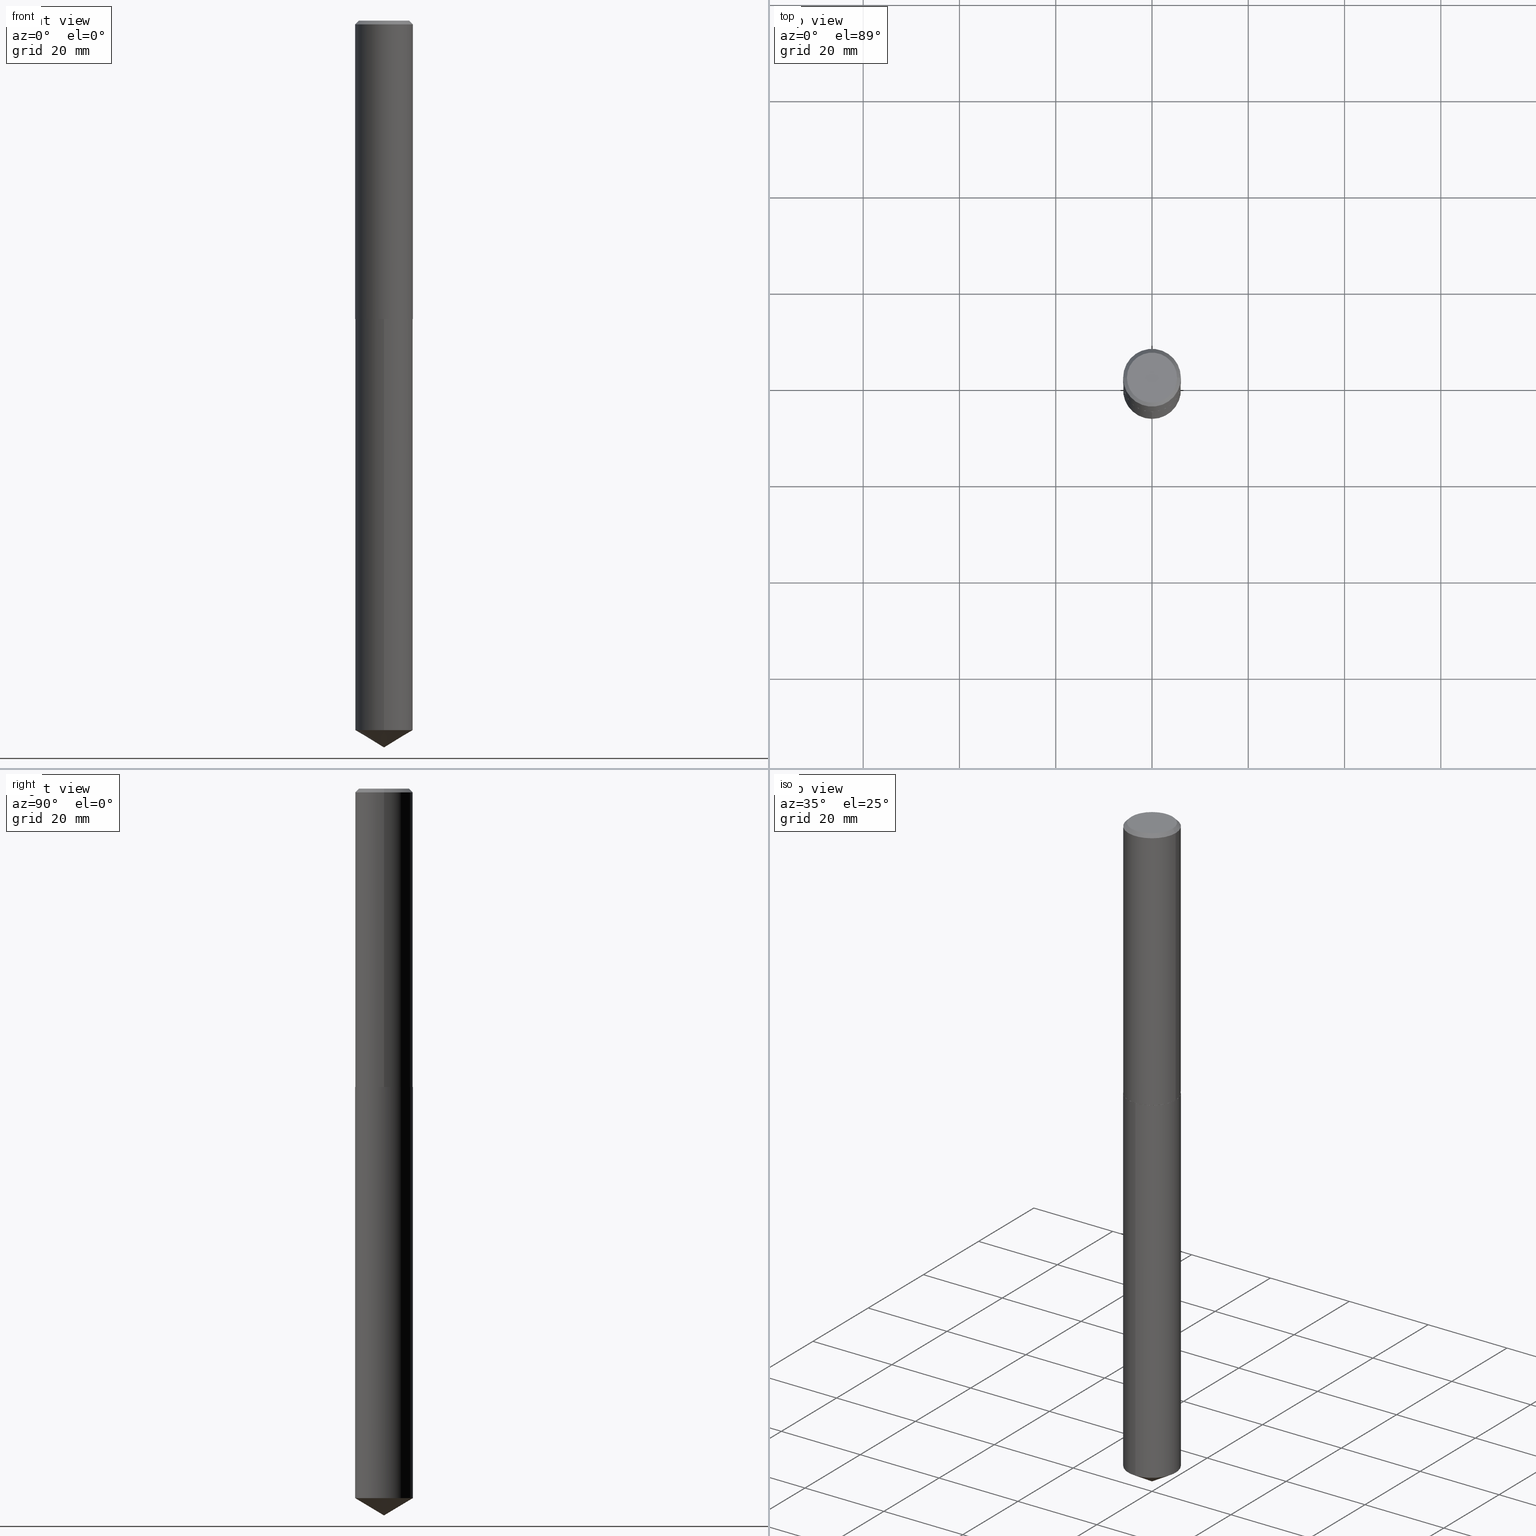
[diagram: canonical four-view strip — front | top / right | iso, engineering-drawing reading convention]
A machine part, canonical four-view strip (front | top / right | iso — engineering-drawing reading convention). The complete STEP part file that produces these views, byte-faithful:
ISO-10303-21;
HEADER;
FILE_DESCRIPTION (( 'STEP AP203' ),
    '1' );
FILE_NAME ('68293.STEP',
    '2024-04-23T12:59:30',
    ( '' ),
    ( '' ),
    'SwSTEP 2.0',
    'SolidWorks 2023',
    '' );
FILE_SCHEMA (( 'CONFIG_CONTROL_DESIGN' ));
ENDSEC;

DATA;
#1 = VERTEX_POINT ( 'NONE', #124 ) ;
#2 = APPROVAL_PERSON_ORGANIZATION ( #342, #362, #324 ) ;
#3 = APPROVAL_STATUS ( 'not_yet_approved' ) ;
#4 = APPROVAL_ROLE ( '' ) ;
#5 = CARTESIAN_POINT ( 'NONE',  ( 1.419029179448476620E-28, -2.026199705678029935E-14, -5.802976721785690017 ) ) ;
#6 = ORIENTED_EDGE ( 'NONE', *, *, #323, .T. ) ;
#7 = LINE ( 'NONE', #42, #57 ) ;
#8 = AXIS2_PLACEMENT_3D ( 'NONE', #122, #71, #272 ) ;
#9 = LOCAL_TIME ( 8, 59, 30.00000000000000000, #165 ) ;
#10 = DIRECTION ( 'NONE',  ( 2.438088387897960049E-29, -3.491481338843145188E-15, -1.000000000000000000 ) ) ;
#11 = FACE_OUTER_BOUND ( 'NONE', #256, .T. ) ;
#12 = CARTESIAN_POINT ( 'NONE',  ( -0.2357000000000007145, -6.844958344621560747E-15, -2.440899999999999181 ) ) ;
#13 = VECTOR ( 'NONE', #186, 39.37007874015748143 ) ;
#14 = EDGE_CURVE ( 'NONE', #335, #155, #183, .T. ) ;
#15 = CONICAL_SURFACE ( 'NONE', #101, 0.2361999999999999933, 0.7853981633974450594 ) ;
#16 = ORIENTED_EDGE ( 'NONE', *, *, #203, .T. ) ;
#17 = VERTEX_POINT ( 'NONE', #326 ) ;
#18 = CC_DESIGN_PERSON_AND_ORGANIZATION_ASSIGNMENT ( #63, #312, ( #69 ) ) ;
#19 = CYLINDRICAL_SURFACE ( 'NONE', #294, 0.2361999999999999933 ) ;
#20 = APPLICATION_CONTEXT ( 'configuration controlled 3d designs of mechanical parts and assemblies' ) ;
#21 = EDGE_CURVE ( 'NONE', #264, #336, #67, .T. ) ;
#22 = ORIENTED_EDGE ( 'NONE', *, *, #201, .F. ) ;
#23 = APPROVAL_DATE_TIME ( #307, #32 ) ;
#24 = SECURITY_CLASSIFICATION_LEVEL ( 'unclassified' ) ;
#25 = DIRECTION ( 'NONE',  ( -1.000000000000000000, 6.982962677686266711E-15, 0.000000000000000000 ) ) ;
#26 = AXIS2_PLACEMENT_3D ( 'NONE', #243, #356, #213 ) ;
#27 = AXIS2_PLACEMENT_3D ( 'NONE', #247, #98, #225 ) ;
#28 = AXIS2_PLACEMENT_3D ( 'NONE', #156, #129, #29 ) ;
#29 = DIRECTION ( 'NONE',  ( -6.982962677686265922E-15, -1.000000000000000000, 3.469747663417777397E-15 ) ) ;
#30 = ORIENTED_EDGE ( 'NONE', *, *, #157, .F. ) ;
#31 = CARTESIAN_POINT ( 'NONE',  ( 0.2362000000000001321, -1.649375784469497117E-15, 1.151752954443000789E-29 ) ) ;
#32 = APPROVAL ( #189, 'UNSPECIFIED' ) ;
#33 = ADVANCED_FACE ( 'NONE', ( #215 ), #34, .T. ) ;
#34 = CYLINDRICAL_SURFACE ( 'NONE', #44, 0.2362000000000001321 ) ;
#35 = APPROVAL ( #3, 'UNSPECIFIED' ) ;
#36 = EDGE_CURVE ( 'NONE', #155, #335, #105, .T. ) ;
#37 = ORIENTED_EDGE ( 'NONE', *, *, #96, .T. ) ;
#38 = PERSON_AND_ORGANIZATION ( #359, #199 ) ;
#39 = CIRCLE ( 'NONE', #277, 0.2361999999999999933 ) ;
#40 = CC_DESIGN_PERSON_AND_ORGANIZATION_ASSIGNMENT ( #303, #377, ( #173 ) ) ;
#41 = FACE_OUTER_BOUND ( 'NONE', #140, .T. ) ;
#42 = CARTESIAN_POINT ( 'NONE',  ( 0.2362000000000002709, -1.016998684378230720E-14, -2.440399999999999014 ) ) ;
#43 = PERSON_AND_ORGANIZATION ( #359, #199 ) ;
#44 = AXIS2_PLACEMENT_3D ( 'NONE', #152, #273, #390 ) ;
#45 = CIRCLE ( 'NONE', #75, 0.2361999999999999933 ) ;
#46 = CARTESIAN_POINT ( 'NONE',  ( -0.2049499999999999933, 1.485712596711223663E-15, 1.200153863154214623E-18 ) ) ;
#47 = FACE_OUTER_BOUND ( 'NONE', #54, .T. ) ;
#48 = ORIENTED_EDGE ( 'NONE', *, *, #276, .F. ) ;
#49 = AXIS2_PLACEMENT_3D ( 'NONE', #388, #302, #25 ) ;
#50 = ORIENTED_EDGE ( 'NONE', *, *, #327, .F. ) ;
#51 = FACE_OUTER_BOUND ( 'NONE', #224, .T. ) ;
#52 = DESIGN_CONTEXT ( 'detailed design', #20, 'design' ) ;
#53 = ADVANCED_FACE ( 'NONE', ( #92 ), #146, .F. ) ;
#54 = EDGE_LOOP ( 'NONE', ( #22, #375, #182, #16 ) ) ;
#55 = CARTESIAN_POINT ( 'NONE',  ( 5.969144809017297917E-29, -8.522356799982231388E-15, -2.440899999999999181 ) ) ;
#56 = AXIS2_PLACEMENT_3D ( 'NONE', #378, #84, #211 ) ;
#57 = VECTOR ( 'NONE', #279, 39.37007874015748143 ) ;
#58 = DIRECTION ( 'NONE',  ( -2.445258590381302040E-29, 3.491782379838977394E-15, 1.000000000000000000 ) ) ;
#59 =( LENGTH_UNIT ( ) NAMED_UNIT ( * ) SI_UNIT ( $, .METRE. ) );
#60 =( NAMED_UNIT ( * ) SI_UNIT ( $, .STERADIAN. ) SOLID_ANGLE_UNIT ( ) );
#61 = DIRECTION ( 'NONE',  ( 1.000000000000000000, -6.982962677686266711E-15, 4.876234172754136290E-29 ) ) ;
#62 = DIRECTION ( 'NONE',  ( 1.000000000000000000, -6.982962677686269077E-15, 0.000000000000000000 ) ) ;
#63 = PERSON_AND_ORGANIZATION ( #359, #199 ) ;
#64 = LINE ( 'NONE', #345, #85 ) ;
#65 = DIRECTION ( 'NONE',  ( -2.445468806185136597E-29, 3.491481338843145583E-15, 1.000000000000000000 ) ) ;
#66 = AXIS2_PLACEMENT_3D ( 'NONE', #320, #119, #61 ) ;
#67 = LINE ( 'NONE', #246, #13 ) ;
#68 = DIRECTION ( 'NONE',  ( -6.982962677686265922E-15, -1.000000000000000000, 3.469747663417777397E-15 ) ) ;
#69 = PRODUCT_DEFINITION ( 'UNKNOWN', '', #173, #52 ) ;
#70 = EDGE_CURVE ( 'NONE', #357, #371, #221, .T. ) ;
#71 = DIRECTION ( 'NONE',  ( -2.445468806185136597E-29, 3.491481338843145583E-15, 1.000000000000000000 ) ) ;
#72 = PERSON_AND_ORGANIZATION_ROLE ( 'design_owner' ) ;
#73 = DATE_TIME_ROLE ( 'creation_date' ) ;
#74 = AXIS2_PLACEMENT_3D ( 'NONE', #280, #370, #110 ) ;
#75 = AXIS2_PLACEMENT_3D ( 'NONE', #131, #97, #254 ) ;
#76 = DIRECTION ( 'NONE',  ( -2.445258590381302040E-29, 3.491782379838977394E-15, 1.000000000000000000 ) ) ;
#77 = CIRCLE ( 'NONE', #74, 0.2357000000000007145 ) ;
#78 = DIRECTION ( 'NONE',  ( -1.000000000000000000, 6.982962677686265922E-15, -4.876176775795935793E-29 ) ) ;
#79 = ORIENTED_EDGE ( 'NONE', *, *, #355, .F. ) ;
#80 = FACE_OUTER_BOUND ( 'NONE', #232, .T. ) ;
#81 = DIRECTION ( 'NONE',  ( -5.985567269335951535E-15, -0.8571673007021116675, 0.5150380749100552658 ) ) ;
#82 = ORIENTED_EDGE ( 'NONE', *, *, #314, .T. ) ;
#83 = DIRECTION ( 'NONE',  ( -2.445468806185136597E-29, 3.491481338843145583E-15, 1.000000000000000000 ) ) ;
#84 = DIRECTION ( 'NONE',  ( -2.438088387897960049E-29, 3.491481338843145188E-15, 1.000000000000000000 ) ) ;
#85 = VECTOR ( 'NONE', #58, 39.37007874015748143 ) ;
#86 = CC_DESIGN_SECURITY_CLASSIFICATION ( #184, ( #173 ) ) ;
#87 = EDGE_CURVE ( 'NONE', #137, #1, #112, .T. ) ;
#88 = DATE_AND_TIME ( #239, #338 ) ;
#89 = SHAPE_DEFINITION_REPRESENTATION ( #310, #376 ) ;
#90 = DIRECTION ( 'NONE',  ( -6.982962677686265922E-15, -1.000000000000000000, 4.626330217890369336E-15 ) ) ;
#91 = ORIENTED_EDGE ( 'NONE', *, *, #231, .F. ) ;
#92 = FACE_OUTER_BOUND ( 'NONE', #198, .T. ) ;
#93 = CIRCLE ( 'NONE', #278, 0.2361999999999999933 ) ;
#94 = ORIENTED_EDGE ( 'NONE', *, *, #203, .F. ) ;
#95 = ORIENTED_EDGE ( 'NONE', *, *, #36, .T. ) ;
#96 = EDGE_CURVE ( 'NONE', #155, #364, #296, .T. ) ;
#97 = DIRECTION ( 'NONE',  ( -2.445468806185136597E-29, 3.491481338843145583E-15, 1.000000000000000000 ) ) ;
#98 = DIRECTION ( 'NONE',  ( -2.445258590381302040E-29, 3.491782379838977394E-15, 1.000000000000000000 ) ) ;
#99 = CARTESIAN_POINT ( 'NONE',  ( 1.678301941865498784E-15, 0.2361999999999914723, -2.440900000000000070 ) ) ;
#100 = AXIS2_PLACEMENT_3D ( 'NONE', #193, #286, #309 ) ;
#101 = AXIS2_PLACEMENT_3D ( 'NONE', #334, #128, #281 ) ;
#102 = LINE ( 'NONE', #163, #138 ) ;
#103 = PRODUCT ( '68293', '68293', '', ( #144 ) ) ;
#104 = CARTESIAN_POINT ( 'NONE',  ( 0.2361999999999999933, -1.758484576308345231E-15, -0.03125000000000021511 ) ) ;
#105 = CIRCLE ( 'NONE', #8, 0.2362000000000002709 ) ;
#106 = AXIS2_PLACEMENT_3D ( 'NONE', #5, #361, #313 ) ;
#107 = ADVANCED_FACE ( 'NONE', ( #141 ), #346, .T. ) ;
#108 = EDGE_CURVE ( 'NONE', #336, #292, #373, .T. ) ;
#109 = DIRECTION ( 'NONE',  ( 1.000000000000000000, -6.982962677686269077E-15, 0.000000000000000000 ) ) ;
#110 = DIRECTION ( 'NONE',  ( 1.000000000000000000, -6.982962677686269866E-15, 0.000000000000000000 ) ) ;
#111 = ORIENTED_EDGE ( 'NONE', *, *, #185, .T. ) ;
#112 = LINE ( 'NONE', #343, #233 ) ;
#113 = ORIENTED_EDGE ( 'NONE', *, *, #70, .F. ) ;
#114 = COORDINATED_UNIVERSAL_TIME_OFFSET ( 5, 0, .BEHIND. ) ;
#115 = COORDINATED_UNIVERSAL_TIME_OFFSET ( 5, 0, .BEHIND. ) ;
#116 = AXIS2_PLACEMENT_3D ( 'NONE', #291, #200, #197 ) ;
#117 =( GEOMETRIC_REPRESENTATION_CONTEXT ( 3 ) GLOBAL_UNCERTAINTY_ASSIGNED_CONTEXT ( ( #257 ) ) GLOBAL_UNIT_ASSIGNED_CONTEXT ( ( #181, #301, #60 ) ) REPRESENTATION_CONTEXT ( 'NONE', 'WORKASPACE' ) );
#118 = PERSON_AND_ORGANIZATION ( #359, #199 ) ;
#119 = DIRECTION ( 'NONE',  ( -2.445468806185136597E-29, 3.491481338843145583E-15, 1.000000000000000000 ) ) ;
#120 = ORIENTED_EDGE ( 'NONE', *, *, #87, .F. ) ;
#121 = CARTESIAN_POINT ( 'NONE',  ( 5.969144809017297917E-29, -8.522356799982231388E-15, -2.440899999999999181 ) ) ;
#122 = CARTESIAN_POINT ( 'NONE',  ( 5.967922074614205116E-29, -8.520611059312809095E-15, -2.440399999999999014 ) ) ;
#123 = FACE_OUTER_BOUND ( 'NONE', #275, .T. ) ;
#124 = CARTESIAN_POINT ( 'NONE',  ( -0.2361999999999999933, -2.636557983710470337E-15, -0.03125000000000021511 ) ) ;
#125 = CYLINDRICAL_SURFACE ( 'NONE', #28, 0.2361999999999999933 ) ;
#126 = CLOSED_SHELL ( 'NONE', ( #107, #236, #180, #53, #265, #33, #317, #305 ) ) ;
#127 = EDGE_CURVE ( 'NONE', #17, #264, #148, .T. ) ;
#128 = DIRECTION ( 'NONE',  ( 2.445468806185136597E-29, -3.491481338843145583E-15, -1.000000000000000000 ) ) ;
#129 = DIRECTION ( 'NONE',  ( -2.445258590381302040E-29, 3.491782379838977394E-15, 1.000000000000000000 ) ) ;
#130 = LINE ( 'NONE', #339, #172 ) ;
#131 = CARTESIAN_POINT ( 'NONE',  ( 7.642090019328603538E-31, -1.091087918388490390E-16, -0.03125000000000021511 ) ) ;
#132 = CONICAL_SURFACE ( 'NONE', #315, 65.52281426576875845, 1.029744258676656754 ) ;
#133 = ORIENTED_EDGE ( 'NONE', *, *, #169, .T. ) ;
#134 = EDGE_CURVE ( 'NONE', #137, #174, #238, .T. ) ;
#135 = ORIENTED_EDGE ( 'NONE', *, *, #157, .T. ) ;
#136 = ADVANCED_FACE ( 'NONE', ( #177 ), #244, .T. ) ;
#137 = VERTEX_POINT ( 'NONE', #46 ) ;
#138 = VECTOR ( 'NONE', #194, 39.37007874015748143 ) ;
#139 = CARTESIAN_POINT ( 'NONE',  ( 5.967922074614205116E-29, -8.520611059312809095E-15, -2.440399999999999014 ) ) ;
#140 = EDGE_LOOP ( 'NONE', ( #329, #304 ) ) ;
#141 = FACE_OUTER_BOUND ( 'NONE', #261, .T. ) ;
#142 = FACE_OUTER_BOUND ( 'NONE', #150, .T. ) ;
#143 = ORIENTED_EDGE ( 'NONE', *, *, #14, .T. ) ;
#144 = MECHANICAL_CONTEXT ( 'NONE', #360, 'mechanical' ) ;
#145 = DATE_AND_TIME ( #298, #234 ) ;
#146 = PLANE ( 'NONE',  #56 ) ;
#147 = PERSON_AND_ORGANIZATION_ROLE ( 'classification_officer' ) ;
#148 = LINE ( 'NONE', #187, #363 ) ;
#149 = CC_DESIGN_APPROVAL ( #35, ( #69 ) ) ;
#150 = EDGE_LOOP ( 'NONE', ( #95, #6, #50, #170 ) ) ;
#151 = CARTESIAN_POINT ( 'NONE',  ( 0.000000000000000000, 0.000000000000000000, 0.000000000000000000 ) ) ;
#152 = CARTESIAN_POINT ( 'NONE',  ( 0.000000000000000000, 0.000000000000000000, 0.000000000000000000 ) ) ;
#153 = CARTESIAN_POINT ( 'NONE',  ( -1.649375784469436177E-15, -0.2362000000000085420, -2.440899999999998293 ) ) ;
#154 = DIRECTION ( 'NONE',  ( -2.445468806185136597E-29, 3.491481338843145583E-15, 1.000000000000000000 ) ) ;
#155 = VERTEX_POINT ( 'NONE', #333 ) ;
#156 = CARTESIAN_POINT ( 'NONE',  ( 5.969144809017297917E-29, -8.522356799982231388E-15, -2.440899999999999181 ) ) ;
#157 = EDGE_CURVE ( 'NONE', #371, #335, #245, .T. ) ;
#158 = CARTESIAN_POINT ( 'NONE',  ( -1.467469417495579720E-47, 2.095157408489530689E-33, 6.000769315822069813E-19 ) ) ;
#159 = CARTESIAN_POINT ( 'NONE',  ( 0.2357000000000007145, -1.016824110311288964E-14, -2.440899999999999181 ) ) ;
#160 = ORIENTED_EDGE ( 'NONE', *, *, #231, .T. ) ;
#161 = DIRECTION ( 'NONE',  ( -2.445468806185136597E-29, 3.491481338843145583E-15, 1.000000000000000000 ) ) ;
#162 = LINE ( 'NONE', #283, #330 ) ;
#163 = CARTESIAN_POINT ( 'NONE',  ( -0.2362000000000001321, 1.678301941865357577E-15, -1.161852468318209457E-29 ) ) ;
#164 = ORIENTED_EDGE ( 'NONE', *, *, #297, .F. ) ;
#165 = COORDINATED_UNIVERSAL_TIME_OFFSET ( 5, 0, .BEHIND. ) ;
#166 = CC_DESIGN_PERSON_AND_ORGANIZATION_ASSIGNMENT ( #216, #72, ( #103 ) ) ;
#167 = PRODUCT_RELATED_PRODUCT_CATEGORY ( 'detail', '', ( #103 ) ) ;
#168 = ORIENTED_EDGE ( 'NONE', *, *, #201, .T. ) ;
#169 = EDGE_CURVE ( 'NONE', #371, #357, #77, .T. ) ;
#170 = ORIENTED_EDGE ( 'NONE', *, *, #96, .F. ) ;
#171 = ADVANCED_FACE ( 'NONE', ( #80 ), #288, .F. ) ;
#172 = VECTOR ( 'NONE', #253, 39.37007874015748143 ) ;
#173 = PRODUCT_DEFINITION_FORMATION_WITH_SPECIFIED_SOURCE ( 'ANY', '', #103, .NOT_KNOWN. ) ;
#174 = VERTEX_POINT ( 'NONE', #316 ) ;
#175 = APPLICATION_PROTOCOL_DEFINITION ( 'international standard', 'config_control_design', 1994, #360 ) ;
#176 = PERSON_AND_ORGANIZATION_ROLE ( 'creator' ) ;
#177 = FACE_OUTER_BOUND ( 'NONE', #196, .T. ) ;
#178 = CARTESIAN_POINT ( 'NONE',  ( 5.967922074614205116E-29, -8.520611059312809095E-15, -2.440399999999999014 ) ) ;
#179 = DIRECTION ( 'NONE',  ( -2.445468806185136877E-29, 3.491481338843145188E-15, 1.000000000000000000 ) ) ;
#180 = ADVANCED_FACE ( 'NONE', ( #51 ), #214, .T. ) ;
#181 =( CONVERSION_BASED_UNIT ( 'INCH', #380 ) LENGTH_UNIT ( ) NAMED_UNIT ( #228 ) );
#182 = ORIENTED_EDGE ( 'NONE', *, *, #87, .T. ) ;
#183 = CIRCLE ( 'NONE', #26, 0.2362000000000002709 ) ;
#184 = SECURITY_CLASSIFICATION ( '', '', #24 ) ;
#185 = EDGE_CURVE ( 'NONE', #17, #372, #162, .T. ) ;
#186 = DIRECTION ( 'NONE',  ( -2.445258590381302040E-29, 3.491782379838977394E-15, 1.000000000000000000 ) ) ;
#187 = CARTESIAN_POINT ( 'NONE',  ( 1.453785302430794487E-28, -2.075682744797128617E-14, -5.944899999999999629 ) ) ;
#188 = APPLICATION_PROTOCOL_DEFINITION ( 'international standard', 'config_control_design', 1994, #20 ) ;
#189 = APPROVAL_STATUS ( 'not_yet_approved' ) ;
#190 = CC_DESIGN_APPROVAL ( #362, ( #184 ) ) ;
#191 = ORIENTED_EDGE ( 'NONE', *, *, #127, .F. ) ;
#192 = CALENDAR_DATE ( 2024, 23, 4 ) ;
#193 = CARTESIAN_POINT ( 'NONE',  ( 7.642090019328603538E-31, -1.091087918388490390E-16, -0.03125000000000021511 ) ) ;
#194 = DIRECTION ( 'NONE',  ( -2.445468806185136877E-29, 3.491481338843145188E-15, 1.000000000000000000 ) ) ;
#195 = ORIENTED_EDGE ( 'NONE', *, *, #323, .F. ) ;
#196 = EDGE_LOOP ( 'NONE', ( #267, #259, #48 ) ) ;
#197 = DIRECTION ( 'NONE',  ( 6.982962677686265922E-15, 1.000000000000000000, -3.491782379838977394E-15 ) ) ;
#198 = EDGE_LOOP ( 'NONE', ( #113, #242 ) ) ;
#199 = ORGANIZATION ( 'UNSPECIFIED', 'UNSPECIFIED', '' ) ;
#200 = DIRECTION ( 'NONE',  ( 2.445258590381301479E-29, -3.491782379838977394E-15, -1.000000000000000000 ) ) ;
#201 = EDGE_CURVE ( 'NONE', #174, #364, #130, .T. ) ;
#202 = APPROVAL_STATUS ( 'not_yet_approved' ) ;
#203 = EDGE_CURVE ( 'NONE', #1, #364, #271, .T. ) ;
#204 = AXIS2_PLACEMENT_3D ( 'NONE', #178, #83, #62 ) ;
#205 = PERSON_AND_ORGANIZATION ( #359, #199 ) ;
#206 = DIRECTION ( 'NONE',  ( 6.090539988449788691E-15, 0.8571673007021152202, 0.5150380749100492705 ) ) ;
#207 = CARTESIAN_POINT ( 'NONE',  ( 0.000000000000000000, 0.000000000000000000, 0.000000000000000000 ) ) ;
#208 = ORIENTED_EDGE ( 'NONE', *, *, #108, .T. ) ;
#209 = APPROVAL_DATE_TIME ( #88, #35 ) ;
#210 = COORDINATED_UNIVERSAL_TIME_OFFSET ( 5, 0, .BEHIND. ) ;
#211 = DIRECTION ( 'NONE',  ( 1.000000000000000000, -6.982962677686265922E-15, 4.876176775795935793E-29 ) ) ;
#212 = ADVANCED_FACE ( 'NONE', ( #365 ), #132, .T. ) ;
#213 = DIRECTION ( 'NONE',  ( 1.000000000000000000, -6.982962677686269077E-15, 0.000000000000000000 ) ) ;
#214 = CONICAL_SURFACE ( 'NONE', #367, 0.2362000000000002709, 0.7853981633971067744 ) ;
#215 = FACE_OUTER_BOUND ( 'NONE', #287, .T. ) ;
#216 = PERSON_AND_ORGANIZATION ( #359, #199 ) ;
#217 = CARTESIAN_POINT ( 'NONE',  ( -0.2362000000000002709, -6.842309117447451124E-15, -2.440399999999999014 ) ) ;
#218 = CARTESIAN_POINT ( 'NONE',  ( -0.2362000000000002709, -6.842309117447451124E-15, -2.440399999999999014 ) ) ;
#219 = CC_DESIGN_PERSON_AND_ORGANIZATION_ASSIGNMENT ( #205, #147, ( #184 ) ) ;
#220 = ORIENTED_EDGE ( 'NONE', *, *, #325, .F. ) ;
#221 = CIRCLE ( 'NONE', #383, 0.2357000000000007145 ) ;
#222 = CARTESIAN_POINT ( 'NONE',  ( 5.969144809017297917E-29, -8.522356799982231388E-15, -2.440899999999999181 ) ) ;
#223 = ADVANCED_FACE ( 'NONE', ( #11 ), #19, .T. ) ;
#224 = EDGE_LOOP ( 'NONE', ( #353, #135, #328, #385 ) ) ;
#225 = DIRECTION ( 'NONE',  ( -6.982962677686266711E-15, -1.000000000000000000, 3.468864327941576859E-15 ) ) ;
#226 = CARTESIAN_POINT ( 'NONE',  ( -8.173269233364498181E-28, 1.167141849788170143E-13, 33.42517874015748447 ) ) ;
#227 = CC_DESIGN_PERSON_AND_ORGANIZATION_ASSIGNMENT ( #118, #176, ( #173 ) ) ;
#228 = DIMENSIONAL_EXPONENTS ( 1.000000000000000000, 0.000000000000000000, 0.000000000000000000, 0.000000000000000000, 0.000000000000000000, 0.000000000000000000, 0.000000000000000000 ) ;
#229 = AXIS2_PLACEMENT_3D ( 'NONE', #207, #268, #386 ) ;
#230 = LOCAL_TIME ( 8, 59, 30.00000000000000000, #115 ) ;
#231 = EDGE_CURVE ( 'NONE', #372, #292, #64, .T. ) ;
#232 = EDGE_LOOP ( 'NONE', ( #250, #208 ) ) ;
#233 = VECTOR ( 'NONE', #322, 39.37007874015748143 ) ;
#234 = LOCAL_TIME ( 8, 59, 30.00000000000000000, #210 ) ;
#235 = EDGE_LOOP ( 'NONE', ( #191, #111, #220 ) ) ;
#236 = ADVANCED_FACE ( 'NONE', ( #142 ), #340, .T. ) ;
#237 = DIRECTION ( 'NONE',  ( -2.445258590381302040E-29, 3.491782379838977394E-15, 1.000000000000000000 ) ) ;
#238 = CIRCLE ( 'NONE', #66, 0.2049499999999999933 ) ;
#239 = CALENDAR_DATE ( 2024, 23, 4 ) ;
#240 = CIRCLE ( 'NONE', #106, 0.2361999999999999933 ) ;
#241 = CALENDAR_DATE ( 2024, 23, 4 ) ;
#242 = ORIENTED_EDGE ( 'NONE', *, *, #169, .F. ) ;
#243 = CARTESIAN_POINT ( 'NONE',  ( 5.967922074614205116E-29, -8.520611059312809095E-15, -2.440399999999999014 ) ) ;
#244 = CONICAL_SURFACE ( 'NONE', #27, 65.52281426576875845, 1.029744258676656754 ) ;
#245 = LINE ( 'NONE', #217, #282 ) ;
#246 = CARTESIAN_POINT ( 'NONE',  ( 1.678301941865416150E-15, 0.2361999999999914723, -2.440900000000000070 ) ) ;
#247 = CARTESIAN_POINT ( 'NONE',  ( -8.173269233364498181E-28, 1.167141849788170143E-13, 33.42517874015748447 ) ) ;
#248 = COORDINATED_UNIVERSAL_TIME_OFFSET ( 5, 0, .BEHIND. ) ;
#249 = PLANE ( 'NONE',  #289 ) ;
#250 = ORIENTED_EDGE ( 'NONE', *, *, #355, .T. ) ;
#251 = AXIS2_PLACEMENT_3D ( 'NONE', #121, #354, #68 ) ;
#252 = LOCAL_TIME ( 8, 59, 30.00000000000000000, #248 ) ;
#253 = DIRECTION ( 'NONE',  ( 0.7071067811865452413, -7.319954787623248157E-15, -0.7071067811865497932 ) ) ;
#254 = DIRECTION ( 'NONE',  ( 1.000000000000000000, -6.982962677686266711E-15, 0.000000000000000000 ) ) ;
#255 = DIRECTION ( 'NONE',  ( 1.000000000000000000, -6.982962677686266711E-15, 4.876234172754136290E-29 ) ) ;
#256 = EDGE_LOOP ( 'NONE', ( #332, #290, #160, #387 ) ) ;
#257 = UNCERTAINTY_MEASURE_WITH_UNIT (LENGTH_MEASURE( 1.000000000000000082E-05 ), #181, 'distance_accuracy_value', 'NONE');
#258 = CC_DESIGN_DATE_AND_TIME_ASSIGNMENT ( #145, #269, ( #184 ) ) ;
#259 = ORIENTED_EDGE ( 'NONE', *, *, #127, .T. ) ;
#260 = DATE_AND_TIME ( #266, #9 ) ;
#261 = EDGE_LOOP ( 'NONE', ( #164, #168, #358, #120 ) ) ;
#262 = DATE_AND_TIME ( #241, #230 ) ;
#263 = VECTOR ( 'NONE', #179, 39.37007874015748143 ) ;
#264 = VERTEX_POINT ( 'NONE', #270 ) ;
#265 = ADVANCED_FACE ( 'NONE', ( #321 ), #318, .T. ) ;
#266 = CALENDAR_DATE ( 2024, 23, 4 ) ;
#267 = ORIENTED_EDGE ( 'NONE', *, *, #185, .F. ) ;
#268 = DIRECTION ( 'NONE',  ( -2.445468806185136597E-29, 3.491481338843145583E-15, 1.000000000000000000 ) ) ;
#269 = DATE_TIME_ROLE ( 'classification_date' ) ;
#270 = CARTESIAN_POINT ( 'NONE',  ( 1.678301941865498389E-15, 0.2361999999999797595, -5.802976721785690906 ) ) ;
#271 = CIRCLE ( 'NONE', #100, 0.2361999999999999933 ) ;
#272 = DIRECTION ( 'NONE',  ( 1.000000000000000000, -6.982962677686269077E-15, 0.000000000000000000 ) ) ;
#273 = DIRECTION ( 'NONE',  ( -2.445468806185136597E-29, 3.491481338843145583E-15, 1.000000000000000000 ) ) ;
#274 = DIRECTION ( 'NONE',  ( 0.000000000000000000, 0.000000000000000000, 1.000000000000000000 ) ) ;
#275 = EDGE_LOOP ( 'NONE', ( #331, #300, #79, #91 ) ) ;
#276 = EDGE_CURVE ( 'NONE', #372, #264, #39, .T. ) ;
#277 = AXIS2_PLACEMENT_3D ( 'NONE', #382, #352, #90 ) ;
#278 = AXIS2_PLACEMENT_3D ( 'NONE', #222, #285, #366 ) ;
#279 = DIRECTION ( 'NONE',  ( 0.7071067811863059882, -2.468850131079726789E-15, 0.7071067811867890462 ) ) ;
#280 = CARTESIAN_POINT ( 'NONE',  ( 5.969144809017297917E-29, -8.522356799982231388E-15, -2.440899999999999181 ) ) ;
#281 = DIRECTION ( 'NONE',  ( -1.000000000000000000, 6.982962677686266711E-15, 0.000000000000000000 ) ) ;
#282 = VECTOR ( 'NONE', #306, 39.37007874015748143 ) ;
#283 = CARTESIAN_POINT ( 'NONE',  ( 1.453681779395780073E-28, -2.075829706990473423E-14, -5.944899999999999629 ) ) ;
#284 = DIRECTION ( 'NONE',  ( -6.982962677686266711E-15, -1.000000000000000000, 3.468864327941576859E-15 ) ) ;
#285 = DIRECTION ( 'NONE',  ( -2.445258590381302040E-29, 3.491782379838977394E-15, 1.000000000000000000 ) ) ;
#286 = DIRECTION ( 'NONE',  ( -2.445468806185136597E-29, 3.491481338843145583E-15, 1.000000000000000000 ) ) ;
#287 = EDGE_LOOP ( 'NONE', ( #195, #143, #37, #94 ) ) ;
#288 = PLANE ( 'NONE',  #116 ) ;
#289 = AXIS2_PLACEMENT_3D ( 'NONE', #158, #10, #78 ) ;
#290 = ORIENTED_EDGE ( 'NONE', *, *, #325, .T. ) ;
#291 = CARTESIAN_POINT ( 'NONE',  ( 5.969144809017297917E-29, -8.522356799982231388E-15, -2.440899999999999181 ) ) ;
#292 = VERTEX_POINT ( 'NONE', #153 ) ;
#293 = ADVANCED_FACE ( 'NONE', ( #123 ), #125, .T. ) ;
#294 = AXIS2_PLACEMENT_3D ( 'NONE', #374, #237, #379 ) ;
#295 = CIRCLE ( 'NONE', #368, 0.2049499999999999933 ) ;
#296 = LINE ( 'NONE', #31, #263 ) ;
#297 = EDGE_CURVE ( 'NONE', #174, #137, #295, .T. ) ;
#298 = CALENDAR_DATE ( 2024, 23, 4 ) ;
#299 = CARTESIAN_POINT ( 'NONE',  ( -1.649375784469354333E-15, -0.2362000000000202826, -5.802976721785689129 ) ) ;
#300 = ORIENTED_EDGE ( 'NONE', *, *, #21, .T. ) ;
#301 =( NAMED_UNIT ( * ) PLANE_ANGLE_UNIT ( ) SI_UNIT ( $, .RADIAN. ) );
#302 = DIRECTION ( 'NONE',  ( 2.445468806185136597E-29, -3.491481338843145583E-15, -1.000000000000000000 ) ) ;
#303 = PERSON_AND_ORGANIZATION ( #359, #199 ) ;
#304 = ORIENTED_EDGE ( 'NONE', *, *, #297, .T. ) ;
#305 = ADVANCED_FACE ( 'NONE', ( #41 ), #249, .F. ) ;
#306 = DIRECTION ( 'NONE',  ( -0.7071067811863059882, 7.493145998869481680E-15, 0.7071067811867890462 ) ) ;
#307 = DATE_AND_TIME ( #192, #252 ) ;
#308 = CC_DESIGN_DATE_AND_TIME_ASSIGNMENT ( #260, #73, ( #69 ) ) ;
#309 = DIRECTION ( 'NONE',  ( 1.000000000000000000, -6.982962677686266711E-15, 0.000000000000000000 ) ) ;
#310 = PRODUCT_DEFINITION_SHAPE ( 'NONE', 'NONE',  #69 ) ;
#311 = APPROVAL_PERSON_ORGANIZATION ( #43, #32, #4 ) ;
#312 = PERSON_AND_ORGANIZATION_ROLE ( 'creator' ) ;
#313 = DIRECTION ( 'NONE',  ( -6.982962677686265922E-15, -1.000000000000000000, 4.626330217890369336E-15 ) ) ;
#314 = EDGE_CURVE ( 'NONE', #357, #155, #7, .T. ) ;
#315 = AXIS2_PLACEMENT_3D ( 'NONE', #226, #76, #284 ) ;
#316 = CARTESIAN_POINT ( 'NONE',  ( 0.2049499999999999933, -1.567808741777880040E-15, 1.200153863174899881E-18 ) ) ;
#317 = ADVANCED_FACE ( 'NONE', ( #47 ), #15, .T. ) ;
#318 = CONICAL_SURFACE ( 'NONE', #204, 0.2362000000000002709, 0.7853981633971067744 ) ;
#319 = AXIS2_PLACEMENT_3D ( 'NONE', #151, #274, #349 ) ;
#320 = CARTESIAN_POINT ( 'NONE',  ( -2.934938834991159440E-47, 4.190314816979061378E-33, 1.200153863164413963E-18 ) ) ;
#321 = FACE_OUTER_BOUND ( 'NONE', #369, .T. ) ;
#322 = DIRECTION ( 'NONE',  ( -0.7071067811865452413, 2.468850131082233000E-15, -0.7071067811865497932 ) ) ;
#323 = EDGE_CURVE ( 'NONE', #335, #1, #102, .T. ) ;
#324 = APPROVAL_ROLE ( '' ) ;
#325 = EDGE_CURVE ( 'NONE', #264, #372, #240, .T. ) ;
#326 = CARTESIAN_POINT ( 'NONE',  ( 1.453681779395780073E-28, -2.075829706990473423E-14, -5.944899999999999629 ) ) ;
#327 = EDGE_CURVE ( 'NONE', #364, #1, #45, .T. ) ;
#328 = ORIENTED_EDGE ( 'NONE', *, *, #36, .F. ) ;
#329 = ORIENTED_EDGE ( 'NONE', *, *, #134, .T. ) ;
#330 = VECTOR ( 'NONE', #81, 39.37007874015748143 ) ;
#331 = ORIENTED_EDGE ( 'NONE', *, *, #276, .T. ) ;
#332 = ORIENTED_EDGE ( 'NONE', *, *, #21, .F. ) ;
#333 = CARTESIAN_POINT ( 'NONE',  ( 0.2362000000000002709, -1.016998684378230720E-14, -2.440399999999999014 ) ) ;
#334 = CARTESIAN_POINT ( 'NONE',  ( 7.642090019328603538E-31, -1.091087918388490390E-16, -0.03125000000000021511 ) ) ;
#335 = VERTEX_POINT ( 'NONE', #218 ) ;
#336 = VERTEX_POINT ( 'NONE', #99 ) ;
#337 = CLOSED_SHELL ( 'NONE', ( #293, #136, #212, #223, #171 ) ) ;
#338 = LOCAL_TIME ( 8, 59, 30.00000000000000000, #114 ) ;
#339 = CARTESIAN_POINT ( 'NONE',  ( 0.2361999999999999933, -1.729558418912484771E-15, -0.03125000000000021511 ) ) ;
#340 = CYLINDRICAL_SURFACE ( 'NONE', #229, 0.2362000000000001321 ) ;
#341 = MANIFOLD_SOLID_BREP ( 'Body-Move/Copy2[2]', #126 ) ;
#342 = PERSON_AND_ORGANIZATION ( #359, #199 ) ;
#343 = CARTESIAN_POINT ( 'NONE',  ( -0.2361999999999999933, 1.540266992630647030E-15, -0.03125000000000021511 ) ) ;
#344 = MANIFOLD_SOLID_BREP ( 'Body-Move/Copy2[1]', #337 ) ;
#345 = CARTESIAN_POINT ( 'NONE',  ( -1.649375784469436177E-15, -0.2362000000000085420, -2.440899999999998293 ) ) ;
#346 = CONICAL_SURFACE ( 'NONE', #49, 0.2361999999999999933, 0.7853981633974450594 ) ;
#347 = CC_DESIGN_APPROVAL ( #32, ( #173 ) ) ;
#348 = ORIENTED_EDGE ( 'NONE', *, *, #14, .F. ) ;
#349 = DIRECTION ( 'NONE',  ( 1.000000000000000000, 0.000000000000000000, 0.000000000000000000 ) ) ;
#350 = APPROVAL_DATE_TIME ( #262, #362 ) ;
#351 = DIRECTION ( 'NONE',  ( 1.000000000000000000, -6.982962677686269866E-15, 0.000000000000000000 ) ) ;
#352 = DIRECTION ( 'NONE',  ( -2.445258590381302040E-29, 3.491782379838977394E-15, 1.000000000000000000 ) ) ;
#353 = ORIENTED_EDGE ( 'NONE', *, *, #70, .T. ) ;
#354 = DIRECTION ( 'NONE',  ( -2.445258590381302040E-29, 3.491782379838977394E-15, 1.000000000000000000 ) ) ;
#355 = EDGE_CURVE ( 'NONE', #292, #336, #93, .T. ) ;
#356 = DIRECTION ( 'NONE',  ( -2.445468806185136597E-29, 3.491481338843145583E-15, 1.000000000000000000 ) ) ;
#357 = VERTEX_POINT ( 'NONE', #159 ) ;
#358 = ORIENTED_EDGE ( 'NONE', *, *, #327, .T. ) ;
#359 = PERSON ( 'UNSPECIFIED', 'UNSPECIFIED', 'UNSPECIFIED', ('UNSPECIFIED'), ('UNSPECIFIED'), ('UNSPECIFIED') ) ;
#360 = APPLICATION_CONTEXT ( 'configuration controlled 3d designs of mechanical parts and assemblies' ) ;
#361 = DIRECTION ( 'NONE',  ( -2.445258590381302040E-29, 3.491782379838977394E-15, 1.000000000000000000 ) ) ;
#362 = APPROVAL ( #202, 'UNSPECIFIED' ) ;
#363 = VECTOR ( 'NONE', #206, 39.37007874015748854 ) ;
#364 = VERTEX_POINT ( 'NONE', #104 ) ;
#365 = FACE_OUTER_BOUND ( 'NONE', #235, .T. ) ;
#366 = DIRECTION ( 'NONE',  ( -6.982962677686265922E-15, -1.000000000000000000, 3.469747663417777397E-15 ) ) ;
#367 = AXIS2_PLACEMENT_3D ( 'NONE', #139, #161, #109 ) ;
#368 = AXIS2_PLACEMENT_3D ( 'NONE', #389, #154, #255 ) ;
#369 = EDGE_LOOP ( 'NONE', ( #30, #133, #82, #348 ) ) ;
#370 = DIRECTION ( 'NONE',  ( -2.445468806185136597E-29, 3.491481338843145583E-15, 1.000000000000000000 ) ) ;
#371 = VERTEX_POINT ( 'NONE', #12 ) ;
#372 = VERTEX_POINT ( 'NONE', #299 ) ;
#373 = CIRCLE ( 'NONE', #251, 0.2361999999999999933 ) ;
#374 = CARTESIAN_POINT ( 'NONE',  ( 5.969144809017297917E-29, -8.522356799982231388E-15, -2.440899999999999181 ) ) ;
#375 = ORIENTED_EDGE ( 'NONE', *, *, #134, .F. ) ;
#376 = ADVANCED_BREP_SHAPE_REPRESENTATION ( '68293', ( #344, #341, #319 ), #117 ) ;
#377 = PERSON_AND_ORGANIZATION_ROLE ( 'design_supplier' ) ;
#378 = CARTESIAN_POINT ( 'NONE',  ( 5.969144809017297917E-29, -8.522356799982231388E-15, -2.440899999999999181 ) ) ;
#379 = DIRECTION ( 'NONE',  ( -6.982962677686265922E-15, -1.000000000000000000, 3.469747663417777397E-15 ) ) ;
#380 = LENGTH_MEASURE_WITH_UNIT ( LENGTH_MEASURE( 0.02539999999999999897 ), #59 );
#381 = APPROVAL_ROLE ( '' ) ;
#382 = CARTESIAN_POINT ( 'NONE',  ( 1.419029179448476620E-28, -2.026199705678029935E-14, -5.802976721785690017 ) ) ;
#383 = AXIS2_PLACEMENT_3D ( 'NONE', #55, #65, #351 ) ;
#384 = APPROVAL_PERSON_ORGANIZATION ( #38, #35, #381 ) ;
#385 = ORIENTED_EDGE ( 'NONE', *, *, #314, .F. ) ;
#386 = DIRECTION ( 'NONE',  ( 1.000000000000000000, -6.982962677686266711E-15, 4.876176775795936353E-29 ) ) ;
#387 = ORIENTED_EDGE ( 'NONE', *, *, #108, .F. ) ;
#388 = CARTESIAN_POINT ( 'NONE',  ( 7.642090019328603538E-31, -1.091087918388490390E-16, -0.03125000000000021511 ) ) ;
#389 = CARTESIAN_POINT ( 'NONE',  ( -2.934938834991159440E-47, 4.190314816979061378E-33, 1.200153863164413963E-18 ) ) ;
#390 = DIRECTION ( 'NONE',  ( 1.000000000000000000, -6.982962677686266711E-15, 4.876176775795936353E-29 ) ) ;
ENDSEC;
END-ISO-10303-21;
